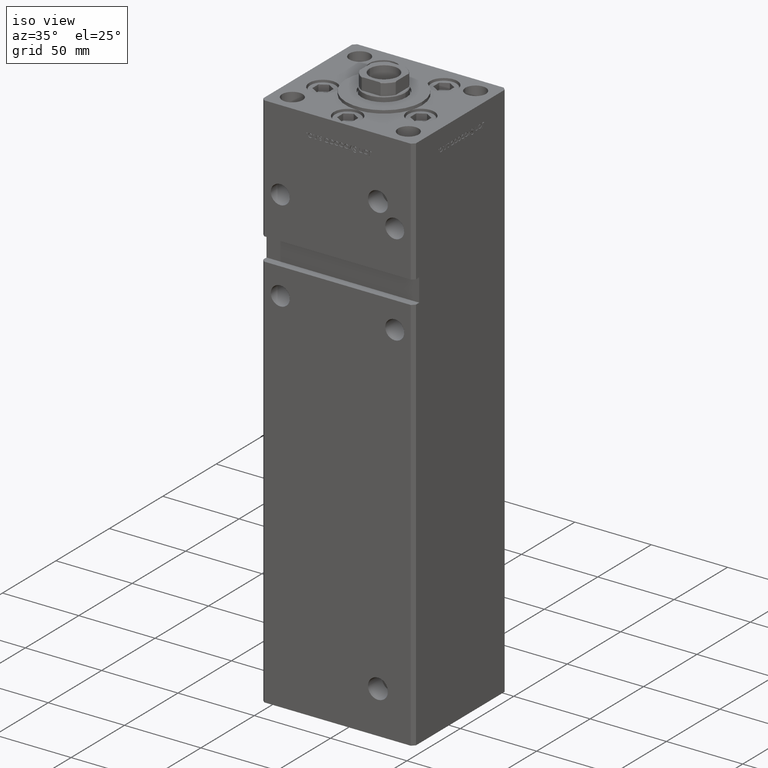
[diagram: clean part render]
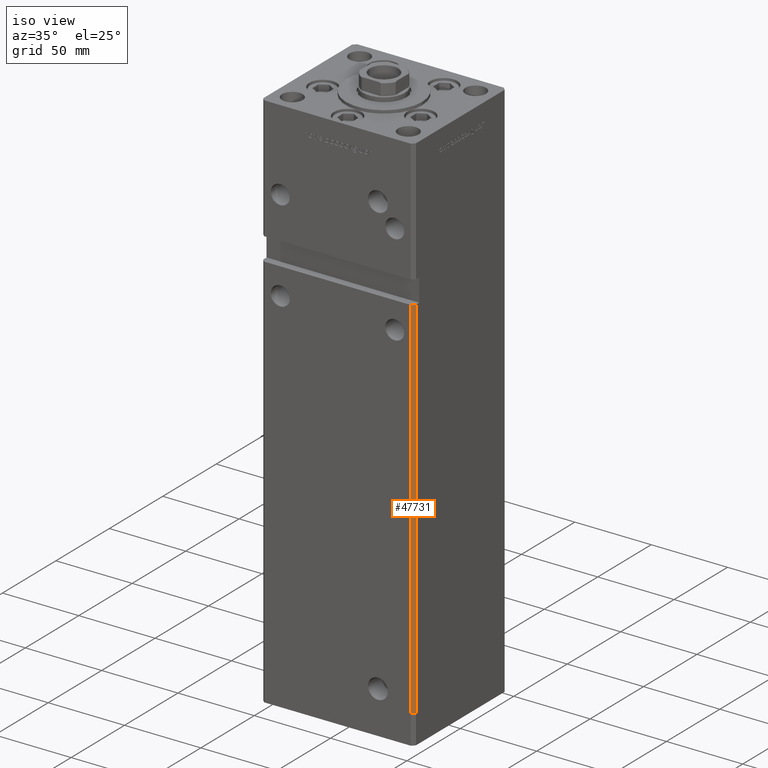
[diagram: same view with one face highlighted and labeled with its STEP entity id]
A machine part, iso view. The second image highlights one B-rep face of the part: STEP entity #47731.
In plain terms, the highlighted planar face has unit normal (0.7071, -0.7071, 0).
Its self-contained STEP definition (entity closure, byte-faithful):
#4524 = VERTEX_POINT ( 'NONE', #24549 ) ;
#5833 = FACE_OUTER_BOUND ( 'NONE', #43626, .T. ) ;
#8034 = CARTESIAN_POINT ( 'NONE',  ( 47.99999999999998579, -43.50000000000000000, 0.000000000000000000 ) ) ;
#9047 = EDGE_CURVE ( 'NONE', #16159, #26174, #50730, .T. ) ;
#9769 = ORIENTED_EDGE ( 'NONE', *, *, #30418, .F. ) ;
#10488 = EDGE_CURVE ( 'NONE', #4524, #26174, #17516, .T. ) ;
#10503 = CARTESIAN_POINT ( 'NONE',  ( 49.99999999999998579, -41.49999999999999289, 242.0000000000000000 ) ) ;
#10708 = DIRECTION ( 'NONE',  ( -0.000000000000000000, -0.000000000000000000, -1.000000000000000000 ) ) ;
#13914 = DIRECTION ( 'NONE',  ( -0.7071067811865474617, -0.7071067811865474617, 0.000000000000000000 ) ) ;
#16159 = VERTEX_POINT ( 'NONE', #41173 ) ;
#17427 = CARTESIAN_POINT ( 'NONE',  ( 49.99999999999998579, -41.49999999999999289, 0.000000000000000000 ) ) ;
#17516 = LINE ( 'NONE', #44009, #28004 ) ;
#19395 = ORIENTED_EDGE ( 'NONE', *, *, #9047, .F. ) ;
#21980 = PLANE ( 'NONE',  #33307 ) ;
#23088 = CARTESIAN_POINT ( 'NONE',  ( 49.99999999999998579, -41.49999999999999289, 242.0000000000000000 ) ) ;
#24549 = CARTESIAN_POINT ( 'NONE',  ( 47.99999999999998579, -43.50000000000000000, 242.0000000000000000 ) ) ;
#24685 = CARTESIAN_POINT ( 'NONE',  ( 49.99999999999998579, -41.49999999999999289, 318.5000000000000000 ) ) ;
#25995 = DIRECTION ( 'NONE',  ( 0.7071067811865475727, -0.7071067811865475727, 0.000000000000000000 ) ) ;
#26174 = VERTEX_POINT ( 'NONE', #8034 ) ;
#28004 = VECTOR ( 'NONE', #10708, 1000.000000000000000 ) ;
#28818 = EDGE_CURVE ( 'NONE', #4524, #44206, #39225, .T. ) ;
#30418 = EDGE_CURVE ( 'NONE', #44206, #16159, #33282, .T. ) ;
#33282 = LINE ( 'NONE', #24685, #50967 ) ;
#33307 = AXIS2_PLACEMENT_3D ( 'NONE', #47213, #25995, #34578 ) ;
#34578 = DIRECTION ( 'NONE',  ( 0.7071067811865474617, 0.7071067811865474617, 0.000000000000000000 ) ) ;
#34667 = DIRECTION ( 'NONE',  ( 0.7071067811865474617, 0.7071067811865474617, 0.000000000000000000 ) ) ;
#34787 = ORIENTED_EDGE ( 'NONE', *, *, #28818, .F. ) ;
#36767 = DIRECTION ( 'NONE',  ( -0.000000000000000000, -0.000000000000000000, -1.000000000000000000 ) ) ;
#37386 = VECTOR ( 'NONE', #13914, 1000.000000000000114 ) ;
#38976 = VECTOR ( 'NONE', #34667, 1000.000000000000114 ) ;
#39225 = LINE ( 'NONE', #10503, #38976 ) ;
#41173 = CARTESIAN_POINT ( 'NONE',  ( 49.99999999999998579, -41.49999999999999289, 0.000000000000000000 ) ) ;
#43626 = EDGE_LOOP ( 'NONE', ( #34787, #50001, #19395, #9769 ) ) ;
#44009 = CARTESIAN_POINT ( 'NONE',  ( 47.99999999999998579, -43.50000000000000000, 318.5000000000000000 ) ) ;
#44206 = VERTEX_POINT ( 'NONE', #23088 ) ;
#47213 = CARTESIAN_POINT ( 'NONE',  ( 49.99999999999998579, -41.49999999999999289, 318.5000000000000000 ) ) ;
#47731 = ADVANCED_FACE ( 'NONE', ( #5833 ), #21980, .T. ) ;
#50001 = ORIENTED_EDGE ( 'NONE', *, *, #10488, .T. ) ;
#50730 = LINE ( 'NONE', #17427, #37386 ) ;
#50967 = VECTOR ( 'NONE', #36767, 1000.000000000000000 ) ;